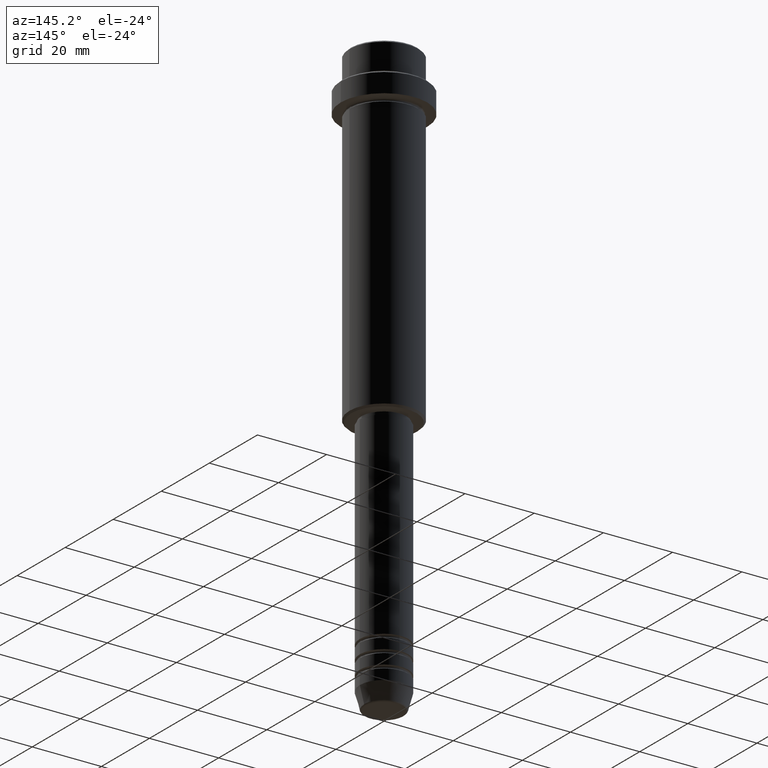
[diagram: clean part render]
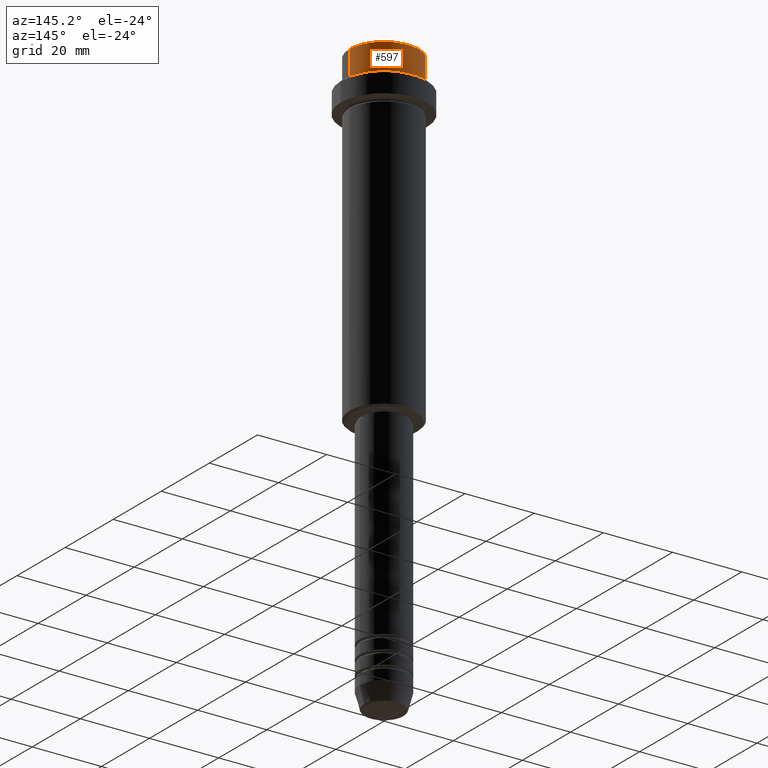
[diagram: same view with one face highlighted and labeled with its STEP entity id]
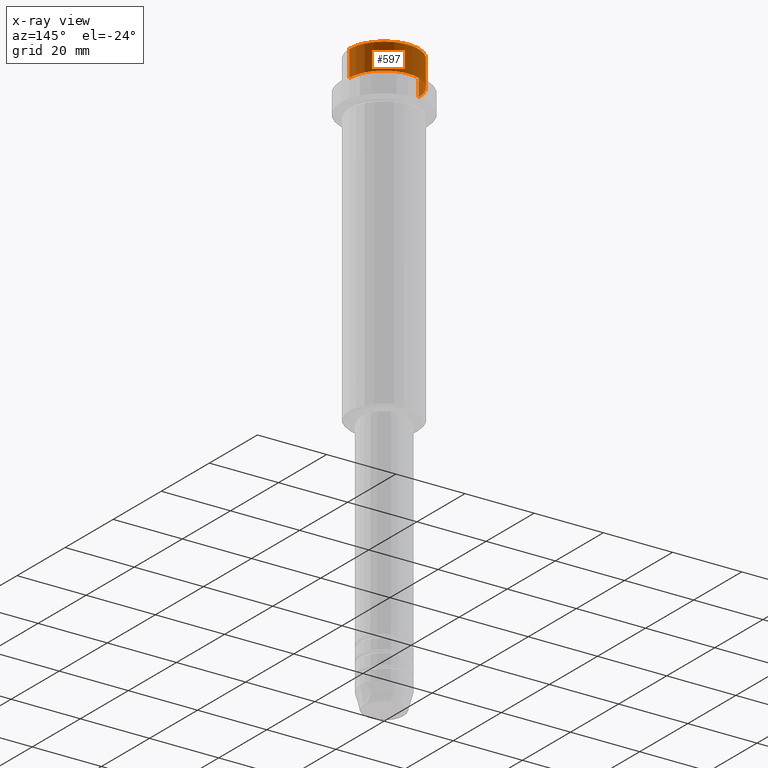
[diagram: x-ray of the same camera — body ghosted, the highlighted face saturated]
A machine part, auxiliary view. The second image highlights one B-rep face of the part: STEP entity #597.
The next image is the same camera in x-ray: the body ghosted, the highlighted face saturated — about 0% of this face is hidden behind the body in this view.
In plain terms, the highlighted cylindrical surface (partial cylindrical patch) has radius 10 mm, axis along (-0, -0, 1).
Its self-contained STEP definition (entity closure, byte-faithful):
#6 = VERTEX_POINT ( 'NONE', #782 ) ;
#73 = VERTEX_POINT ( 'NONE', #617 ) ;
#75 = VERTEX_POINT ( 'NONE', #1270 ) ;
#146 = CARTESIAN_POINT ( 'NONE',  ( 0.000000000000000000, 0.000000000000000000, 0.000000000000000000 ) ) ;
#208 = LINE ( 'NONE', #651, #891 ) ;
#212 = EDGE_CURVE ( 'NONE', #75, #1015, #528, .T. ) ;
#218 = CIRCLE ( 'NONE', #905, 9.999999999999998224 ) ;
#230 = DIRECTION ( 'NONE',  ( 1.000000000000000000, 0.000000000000000000, 0.000000000000000000 ) ) ;
#255 = CARTESIAN_POINT ( 'NONE',  ( 0.000000000000000000, 0.000000000000000000, -7.999999999999998224 ) ) ;
#383 = EDGE_CURVE ( 'NONE', #75, #73, #218, .T. ) ;
#463 = EDGE_CURVE ( 'NONE', #6, #1015, #1144, .T. ) ;
#495 = ORIENTED_EDGE ( 'NONE', *, *, #212, .F. ) ;
#519 = ORIENTED_EDGE ( 'NONE', *, *, #383, .T. ) ;
#528 = LINE ( 'NONE', #1194, #1041 ) ;
#592 = DIRECTION ( 'NONE',  ( -0.000000000000000000, -0.000000000000000000, 1.000000000000000000 ) ) ;
#597 = ADVANCED_FACE ( 'NONE', ( #1279 ), #733, .T. ) ;
#617 = CARTESIAN_POINT ( 'NONE',  ( -9.999999999999998224, 1.224646799147353059E-15, -7.999999999999998224 ) ) ;
#651 = CARTESIAN_POINT ( 'NONE',  ( -9.999999999999998224, 1.224646799147353059E-15, 0.000000000000000000 ) ) ;
#685 = CARTESIAN_POINT ( 'NONE',  ( 9.999999999999998224, 0.000000000000000000, -0.4999999999999692468 ) ) ;
#733 = CYLINDRICAL_SURFACE ( 'NONE', #744, 9.999999999999998224 ) ;
#744 = AXIS2_PLACEMENT_3D ( 'NONE', #146, #592, #1062 ) ;
#782 = CARTESIAN_POINT ( 'NONE',  ( -9.999999999999998224, 1.224646799147353059E-15, -0.4999999999999692468 ) ) ;
#819 = DIRECTION ( 'NONE',  ( 0.000000000000000000, 0.000000000000000000, -1.000000000000000000 ) ) ;
#850 = ORIENTED_EDGE ( 'NONE', *, *, #999, .T. ) ;
#882 = ORIENTED_EDGE ( 'NONE', *, *, #463, .T. ) ;
#891 = VECTOR ( 'NONE', #1090, 1000.000000000000000 ) ;
#901 = DIRECTION ( 'NONE',  ( -0.000000000000000000, -0.000000000000000000, 1.000000000000000000 ) ) ;
#905 = AXIS2_PLACEMENT_3D ( 'NONE', #255, #901, #230 ) ;
#999 = EDGE_CURVE ( 'NONE', #73, #6, #208, .T. ) ;
#1015 = VERTEX_POINT ( 'NONE', #685 ) ;
#1021 = AXIS2_PLACEMENT_3D ( 'NONE', #1166, #819, #1038 ) ;
#1038 = DIRECTION ( 'NONE',  ( 1.000000000000000000, 0.000000000000000000, 0.000000000000000000 ) ) ;
#1041 = VECTOR ( 'NONE', #1415, 1000.000000000000000 ) ;
#1062 = DIRECTION ( 'NONE',  ( 1.000000000000000000, 0.000000000000000000, 0.000000000000000000 ) ) ;
#1090 = DIRECTION ( 'NONE',  ( -0.000000000000000000, -0.000000000000000000, 1.000000000000000000 ) ) ;
#1144 = CIRCLE ( 'NONE', #1021, 9.999999999999998224 ) ;
#1166 = CARTESIAN_POINT ( 'NONE',  ( 0.000000000000000000, 0.000000000000000000, -0.4999999999999692468 ) ) ;
#1194 = CARTESIAN_POINT ( 'NONE',  ( 9.999999999999998224, 0.000000000000000000, 0.000000000000000000 ) ) ;
#1270 = CARTESIAN_POINT ( 'NONE',  ( 9.999999999999998224, 0.000000000000000000, -7.999999999999998224 ) ) ;
#1279 = FACE_OUTER_BOUND ( 'NONE', #1345, .T. ) ;
#1345 = EDGE_LOOP ( 'NONE', ( #519, #850, #882, #495 ) ) ;
#1415 = DIRECTION ( 'NONE',  ( -0.000000000000000000, -0.000000000000000000, 1.000000000000000000 ) ) ;